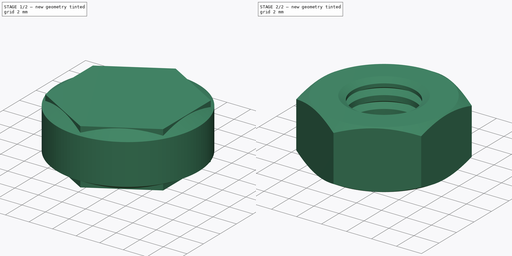
[diagram: build sequence overview — one tinted view per stage of 2, left to right]
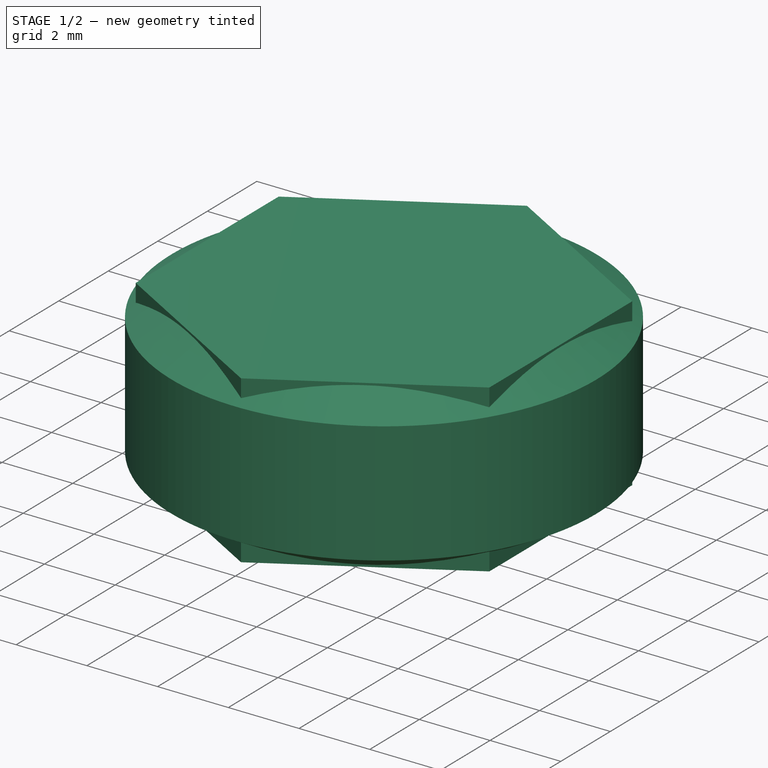
[diagram: stage 1 of 2 — iso view after this stage's code; geometry added in this stage tinted green]
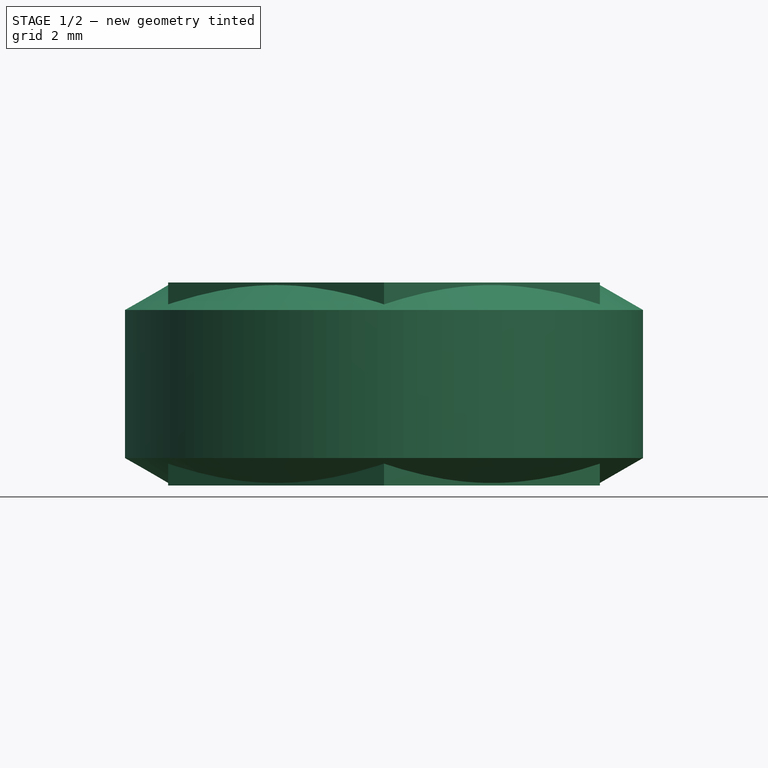
[diagram: stage 1 of 2 — front view after this stage's code; geometry added in this stage tinted green]
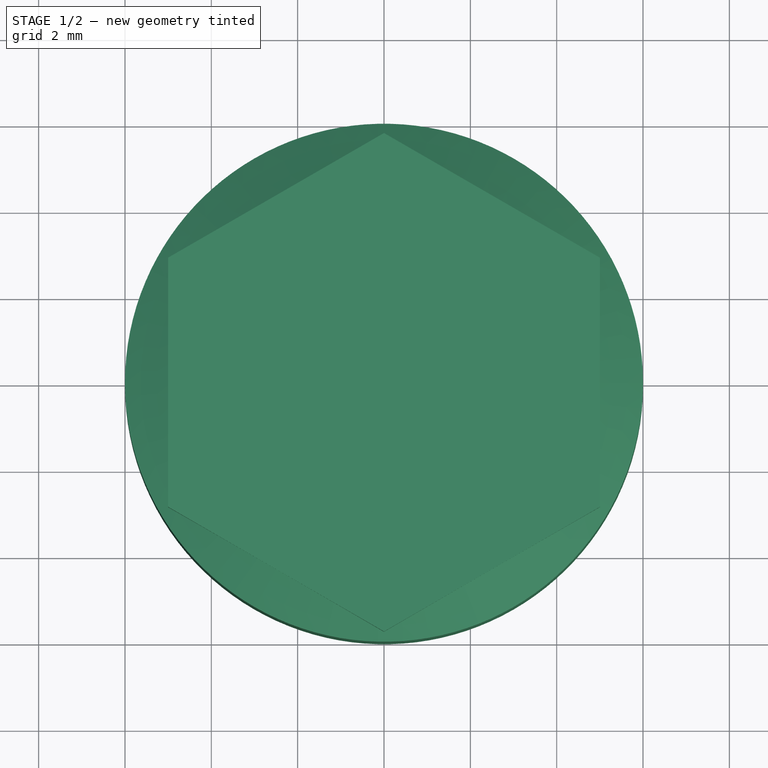
[diagram: stage 1 of 2 — top view after this stage's code; geometry added in this stage tinted green]
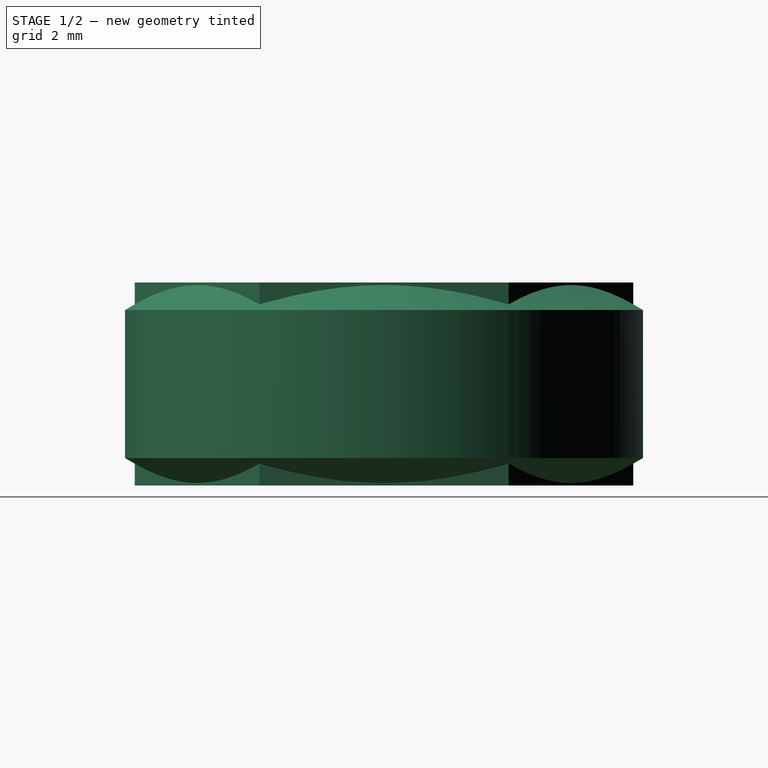
[diagram: stage 1 of 2 — right view after this stage's code; geometry added in this stage tinted green]
FCSTD DOCUMENT  (FreeCAD 0.18.3R)
Label: inner_threads1
License: All rights reserved
LicenseURL: http://en.wikipedia.org/wiki/All_rights_reserved
objects: Sketcher::SketchObject×2, Part::Extrusion×1, Part::Revolution×1, Part::MultiCommon×1
note: 5 computed .brp shape members not serialized (recipe doc carries the construction recipe); baked Part::Feature solids carry a one-line shape summary decoded from their .brp

FEATURE [Sketcher::SketchObject] Sketch
  sketch-geometry (7):
    g0: LineSegment StartX=0 StartY=5.7735 StartZ=0 EndX=-5 EndY=2.88675 EndZ=0
    g1: LineSegment StartX=-5 StartY=2.88675 StartZ=0 EndX=-5 EndY=-2.88675 EndZ=0
    g2: LineSegment StartX=-5 StartY=-2.88675 StartZ=0 EndX=-9e-16 EndY=-5.7735 EndZ=0
    g3: LineSegment StartX=-9e-16 StartY=-5.7735 StartZ=0 EndX=5 EndY=-2.88675 EndZ=0
    g4: LineSegment StartX=5 StartY=-2.88675 StartZ=0 EndX=5 EndY=2.88675 EndZ=0
    g5: LineSegment StartX=5 StartY=2.88675 StartZ=0 EndX=0 EndY=5.7735 EndZ=0
    g6: Circle [constr] CenterX=0 CenterY=0 CenterZ=0 NormalX=0 NormalY=0 NormalZ=1 AngleXU=0 Radius=5.7735
  constraints (16):
    c: Coincident(g0,g1)
    c: Coincident(g1,g2)
    c: Coincident(g2,g3)
    c: Coincident(g3,g4)
    c: Coincident(g4,g5)
    c: Coincident(g5,g0)
    c: Equal(g0, g1-g5) x5
    c: PointOnObject(g0,g6)
    c: PointOnObject(g1,g6)
    c: PointOnObject(g2,g6)
    c: PointOnObject(g3,g6)
    c: PointOnObject(g4,g6)
    c: PointOnObject(g5,g6)
    c: Coincident(g6,g-1)
    c: PointOnObject(g5,g-2)
    c: DistanceX(g0,g4) = 10
FEATURE [Part::Extrusion] Extrude
  Base = -> Sketch
  Dir = (0,0,1)
  DirMode = 2
  FaceMakerClass = Part::FaceMakerBullseye
  LengthFwd = 4.7
  LengthRev = 0
  Solid = true
  Symmetric = false
FEATURE [Sketcher::SketchObject] Sketch001
  Placement = pos=(0,0,0) rot=(-1,0,0;4.71239rad)
  sketch-geometry (22):
    g0: LineSegment StartX=3 StartY=0 StartZ=0 EndX=2.5 EndY=0.288675 EndZ=0
    g1: LineSegment StartX=2.5 StartY=0.288675 StartZ=0 EndX=2.5 EndY=0.561325 EndZ=0
    g2: LineSegment StartX=2.5 StartY=0.561325 StartZ=0 EndX=3 EndY=0.85 EndZ=0
    g3: LineSegment StartX=3 StartY=0.85 StartZ=0 EndX=2.5 EndY=1.13868 EndZ=0
    g4: LineSegment StartX=2.5 StartY=1.13868 StartZ=0 EndX=2.5 EndY=1.56132 EndZ=0
    g5: LineSegment StartX=2.5 StartY=1.56132 StartZ=0 EndX=3 EndY=1.85 EndZ=0
    g6: LineSegment StartX=3 StartY=1.85 StartZ=0 EndX=2.5 EndY=2.13868 EndZ=0
    g7: LineSegment StartX=2.5 StartY=2.13868 StartZ=0 EndX=2.5 EndY=2.56132 EndZ=0
    g8: LineSegment StartX=2.5 StartY=2.56132 StartZ=0 EndX=3 EndY=2.85 EndZ=0
    g9: LineSegment StartX=3 StartY=2.85 StartZ=0 EndX=2.5 EndY=3.13868 EndZ=0
    g10: LineSegment StartX=2.5 StartY=3.13868 StartZ=0 EndX=2.5 EndY=3.56132 EndZ=0
    g11: LineSegment StartX=2.5 StartY=3.56132 StartZ=0 EndX=3 EndY=3.85 EndZ=0
    g12: LineSegment StartX=3 StartY=3.85 StartZ=0 EndX=2.5 EndY=4.13868 EndZ=0
    g13: LineSegment StartX=2.5 StartY=4.13868 StartZ=0 EndX=2.5 EndY=4.41132 EndZ=0
    g14: LineSegment StartX=2.5 StartY=4.41132 StartZ=0 EndX=3 EndY=4.7 EndZ=0
    g15: LineSegment StartX=3 StartY=4.7 StartZ=0 EndX=4.9 EndY=4.7 EndZ=0
    g16: LineSegment StartX=4.9 StartY=4.7 StartZ=0 EndX=6 EndY=4.06491 EndZ=0
    g17: LineSegment StartX=6 StartY=4.06491 StartZ=0 EndX=6 EndY=0.635085 EndZ=0
    g18: LineSegment StartX=6 StartY=0.635085 StartZ=0 EndX=4.9 EndY=0 EndZ=0
    g19: LineSegment StartX=4.9 StartY=0 StartZ=0 EndX=3 EndY=0 EndZ=0
    g20: LineSegment [constr] StartX=3 StartY=4.7 StartZ=0 EndX=3 EndY=0 EndZ=0
    g21: LineSegment [constr] StartX=2.5 StartY=2.35 StartZ=0 EndX=3 EndY=2.35 EndZ=0
  constraints (65):
    c: PointOnObject(g0,g-1)
    c: Coincident(g0,g1)
    c: Vertical(g1)
    c: Coincident(g1,g2)
    c: Coincident(g2,g3)
    c: Coincident(g3,g4)
    c: Vertical(g4)
    c: Coincident(g4,g5)
    c: Coincident(g5,g6)
    c: Coincident(g6,g7)
    c: Vertical(g7)
    c: Coincident(g7,g8)
    c: Coincident(g8,g9)
    c: Coincident(g9,g10)
    c: Vertical(g10)
    c: Coincident(g10,g11)
    c: Coincident(g11,g12)
    c: Coincident(g12,g13)
    c: Vertical(g13)
    c: Coincident(g13,g14)
    c: Coincident(g14,g15)
    c: Horizontal(g15)
    c: Coincident(g15,g16)
    c: Coincident(g16,g17)
    c: Vertical(g17)
    c: Coincident(g17,g18)
    c: PointOnObject(g18,g-1)
    c: Coincident(g18,g19)
    c: Coincident(g19,g0)
    c: Equal(g13,g1)
    c: Equal(g4,g7)
    c: Equal(g7,g10)
    c: Equal(g0,g2)
    c: Equal(g2,g3)
    c: Equal(g3,g5)
    c: Equal(g5,g6)
    c: Equal(g6,g8)
    c: Equal(g8,g9)
    c: Equal(g9,g11)
    c: Equal(g11,g12)
    c: Equal(g12,g14)
    c: Equal(g16,g18)
    c: PointOnObject(g1,g4)
    c: PointOnObject(g4,g7)
    c: PointOnObject(g7,g10)
    c: PointOnObject(g10,g13)
    c: Angle(g14,g15) = 2.61799
    c: Angle(g15,g16) = 2.61799
    c: Angle(g18,g19) = 2.61799
    c: Coincident(g20,g14)
    c: Coincident(g20,g0)
    c: Vertical(g20)
    c: PointOnObject(g21,g20)
    c: Horizontal(g21)
    c: Symmetric(g7,g7,g21)
    c: PointOnObject(g11,g20)
    c: PointOnObject(g8,g20)
    c: PointOnObject(g5,g20)
    c: PointOnObject(g2,g20)
    c: DistanceX(g-1,g13) = 2.5
    c: DistanceX(g-1,g14) = 3
    c: DistanceX(g-1,g15) = 4.9
    c: DistanceX(g-1,g16) = 6
    c: DistanceY(g9,g12) = 1
    c: DistanceY(g18,g15) = 4.7
FEATURE [Part::Revolution] Revolve
  Angle = 360
  Axis = (0,0,1)
  Base = (0,0,0)
  FaceMakerClass = Part::FaceMakerBullseye
  Solid = true
  Source = -> Sketch001
  Symmetric = false
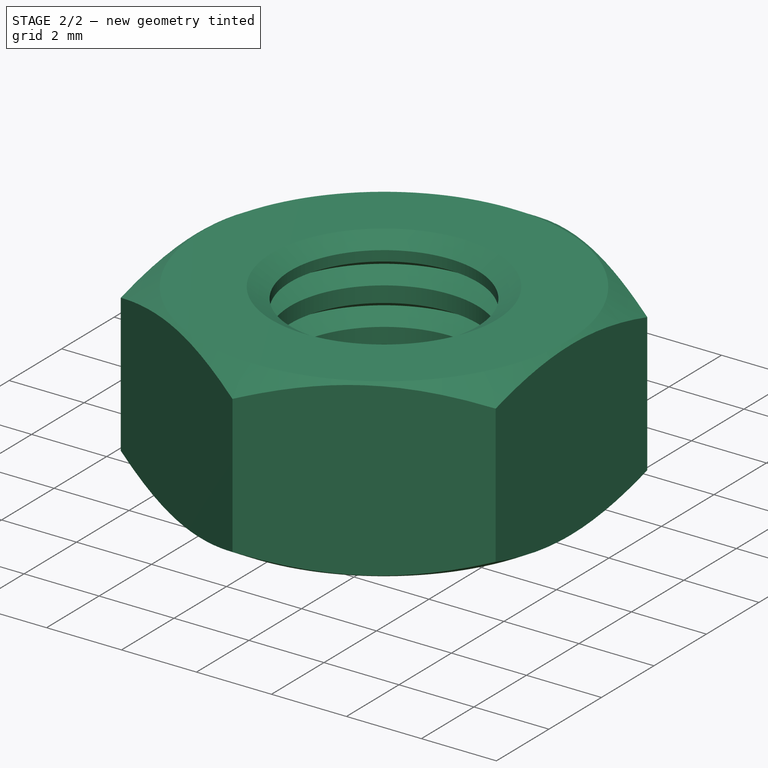
[diagram: stage 2 of 2 — iso view after this stage's code; geometry added in this stage tinted green]
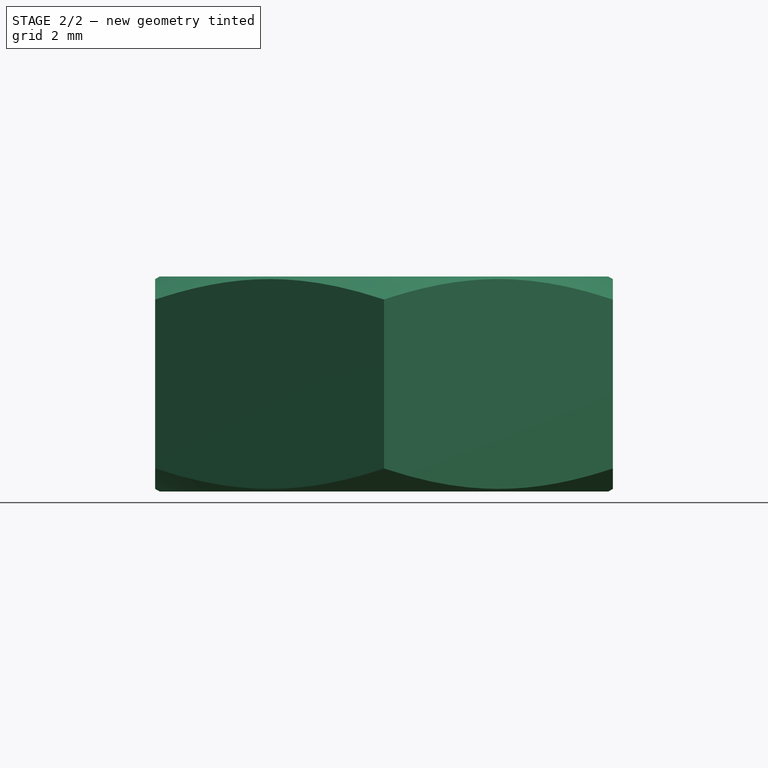
[diagram: stage 2 of 2 — front view after this stage's code; geometry added in this stage tinted green]
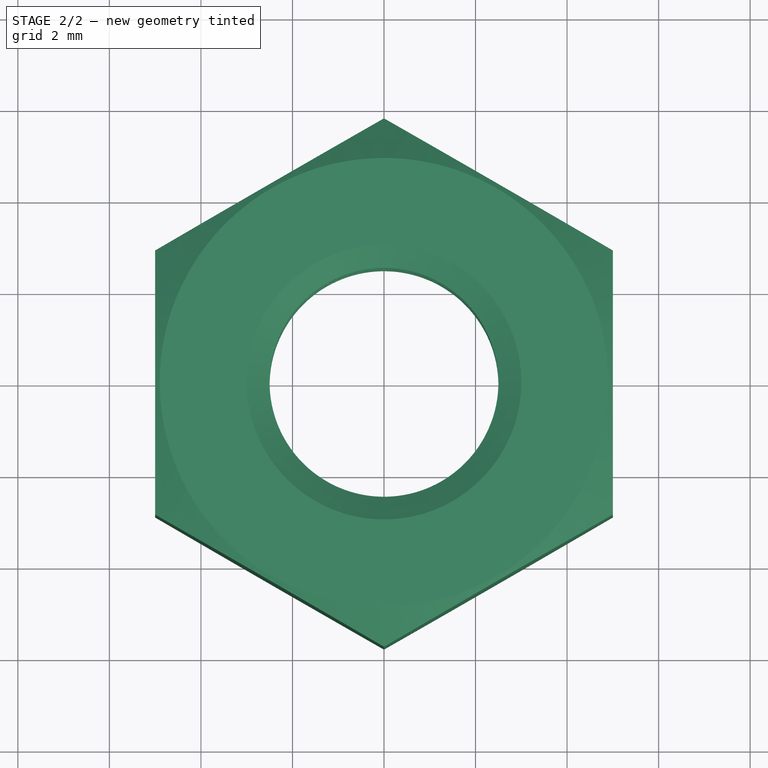
[diagram: stage 2 of 2 — top view after this stage's code; geometry added in this stage tinted green]
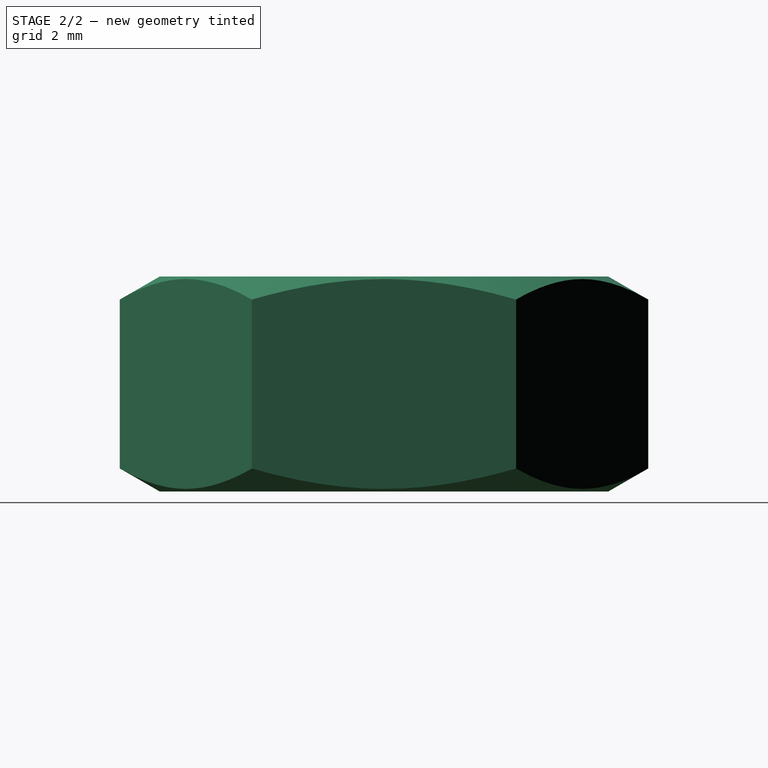
[diagram: stage 2 of 2 — right view after this stage's code; geometry added in this stage tinted green]
FEATURE [Part::MultiCommon] Common
  Refine = true
  Shapes = -> [Extrude,Revolve]
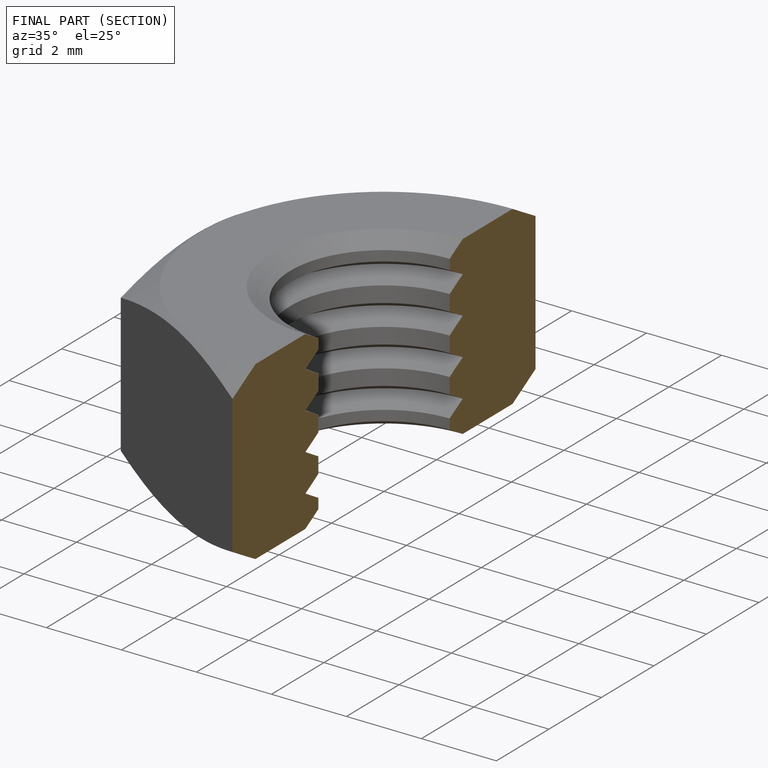
[diagram: finished part — half-section view (interior)]
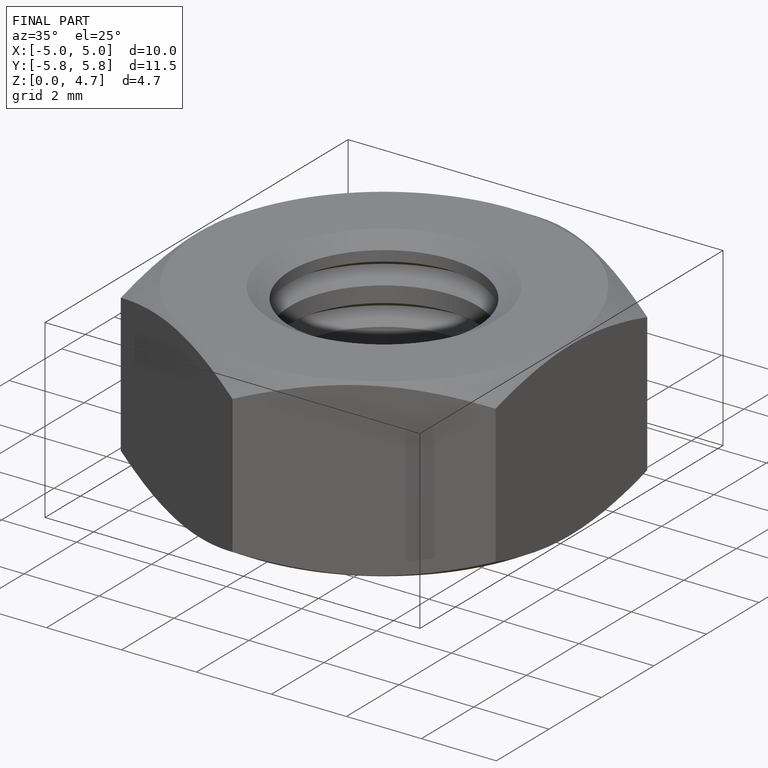
[diagram: finished part — iso view with bounding-box wireframe]
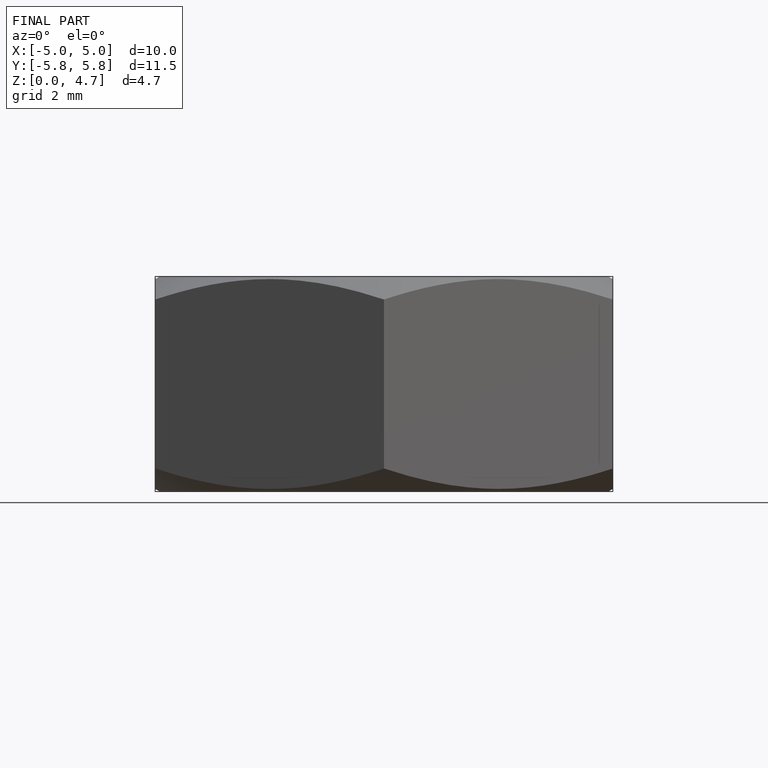
[diagram: finished part — front view with bounding-box wireframe]
